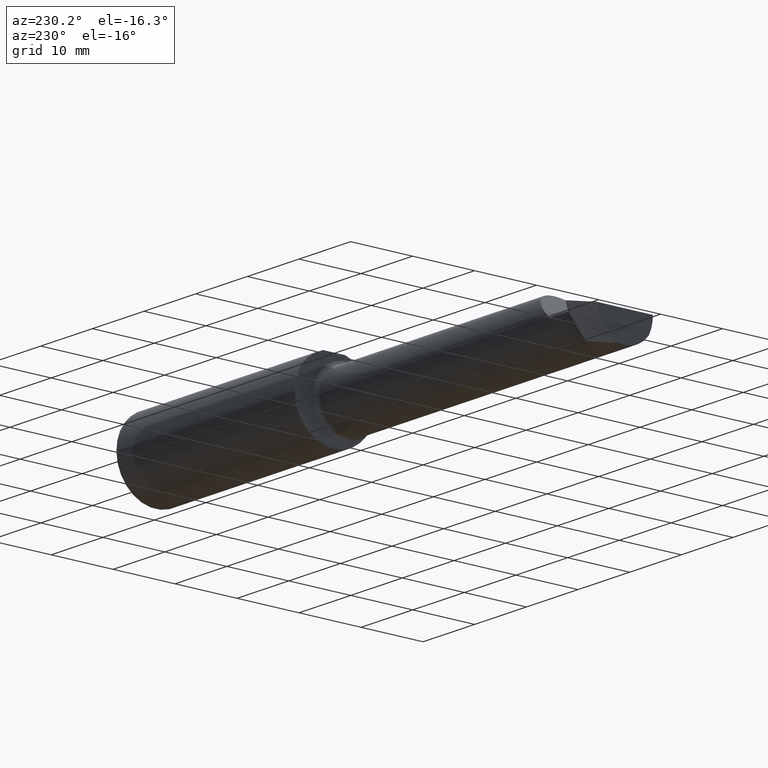
[diagram: clean part render]
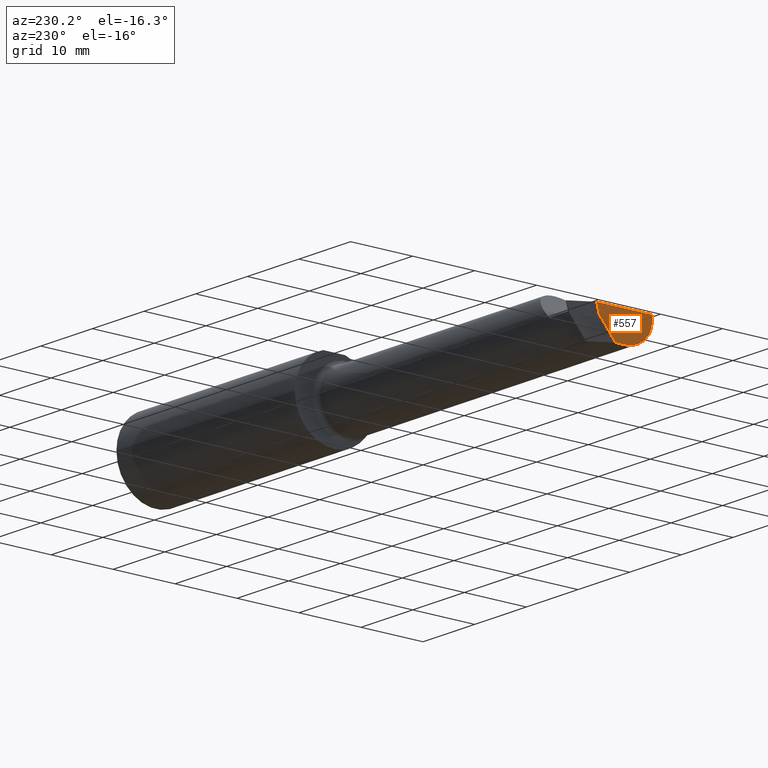
[diagram: same view with one face highlighted and labeled with its STEP entity id]
A machine part, auxiliary view. The second image highlights one B-rep face of the part: STEP entity #557.
In plain terms, the highlighted planar face has unit normal (-1, -0, 0).
Its self-contained STEP definition (entity closure, byte-faithful):
#8 = DIRECTION ( 'NONE',  ( 0.000000000000000000, 1.000000000000000000, 0.000000000000000000 ) ) ;
#21 = CARTESIAN_POINT ( 'NONE',  ( -3.500000000000000000, 0.09158186431805868943, -0.05999999999999753447 ) ) ;
#49 = VECTOR ( 'NONE', #334, 39.37007874015748143 ) ;
#79 = CARTESIAN_POINT ( 'NONE',  ( -3.500000000000000000, -0.2258019038076149176, -0.1069510296203672051 ) ) ;
#94 = EDGE_CURVE ( 'NONE', #822, #840, #180, .T. ) ;
#106 = VERTEX_POINT ( 'NONE', #824 ) ;
#112 = AXIS2_PLACEMENT_3D ( 'NONE', #845, #846, #8 ) ;
#134 = EDGE_CURVE ( 'NONE', #822, #106, #601, .T. ) ;
#141 = EDGE_CURVE ( 'NONE', #722, #840, #621, .T. ) ;
#180 = LINE ( 'NONE', #907, #714 ) ;
#182 = DIRECTION ( 'NONE',  ( 1.224646799147351728E-16, -1.000000000000000000, 0.000000000000000000 ) ) ;
#198 = ORIENTED_EDGE ( 'NONE', *, *, #491, .F. ) ;
#199 = PLANE ( 'NONE',  #792 ) ;
#226 = CIRCLE ( 'NONE', #112, 0.2498499999999999888 ) ;
#241 = CARTESIAN_POINT ( 'NONE',  ( -3.500000000000000000, -6.123233995736759873E-17, 0.000000000000000000 ) ) ;
#267 = VERTEX_POINT ( 'NONE', #79 ) ;
#274 = ORIENTED_EDGE ( 'NONE', *, *, #141, .F. ) ;
#299 = CIRCLE ( 'NONE', #579, 0.1850000000000000533 ) ;
#317 = DIRECTION ( 'NONE',  ( 0.000000000000000000, -0.6427876096865350330, -0.7660444431189815662 ) ) ;
#320 = FACE_OUTER_BOUND ( 'NONE', #691, .T. ) ;
#332 = VECTOR ( 'NONE', #612, 39.37007874015748143 ) ;
#334 = DIRECTION ( 'NONE',  ( -3.118273268708853569E-17, 0.2546263355997762656, 0.9670395179200435010 ) ) ;
#451 = ORIENTED_EDGE ( 'NONE', *, *, #715, .F. ) ;
#460 = VERTEX_POINT ( 'NONE', #811 ) ;
#468 = CARTESIAN_POINT ( 'NONE',  ( -3.500000000000000000, -0.07485000000000029130, -0.1850000000000000533 ) ) ;
#482 = DIRECTION ( 'NONE',  ( 0.000000000000000000, -1.000000000000000000, 0.000000000000000000 ) ) ;
#486 = DIRECTION ( 'NONE',  ( 1.000000000000000000, 1.553500558300393113E-17, -0.000000000000000000 ) ) ;
#491 = EDGE_CURVE ( 'NONE', #106, #460, #589, .T. ) ;
#510 = ORIENTED_EDGE ( 'NONE', *, *, #660, .F. ) ;
#557 = ADVANCED_FACE ( 'NONE', ( #320 ), #199, .T. ) ;
#579 = AXIS2_PLACEMENT_3D ( 'NONE', #700, #486, #482 ) ;
#589 = LINE ( 'NONE', #241, #332 ) ;
#597 = ORIENTED_EDGE ( 'NONE', *, *, #94, .T. ) ;
#601 = LINE ( 'NONE', #899, #49 ) ;
#612 = DIRECTION ( 'NONE',  ( 1.224646799147351728E-16, -1.000000000000000000, 0.000000000000000000 ) ) ;
#620 = CARTESIAN_POINT ( 'NONE',  ( -3.500000000000000000, -0.07485000000000019416, -0.1850000000000000533 ) ) ;
#621 = LINE ( 'NONE', #468, #743 ) ;
#660 = EDGE_CURVE ( 'NONE', #460, #267, #226, .T. ) ;
#689 = DIRECTION ( 'NONE',  ( 0.000000000000000000, 1.000000000000000000, 1.406552993276529236E-16 ) ) ;
#691 = EDGE_LOOP ( 'NONE', ( #761, #597, #274, #451, #510, #198 ) ) ;
#700 = CARTESIAN_POINT ( 'NONE',  ( -3.500000000000000000, -0.07485000000000022191, 0.000000000000000000 ) ) ;
#714 = VECTOR ( 'NONE', #317, 39.37007874015748854 ) ;
#715 = EDGE_CURVE ( 'NONE', #267, #722, #299, .T. ) ;
#718 = CARTESIAN_POINT ( 'NONE',  ( -3.499999999999999112, -0.01330558957910123880, -0.1850000000000002198 ) ) ;
#722 = VERTEX_POINT ( 'NONE', #620 ) ;
#743 = VECTOR ( 'NONE', #689, 39.37007874015748143 ) ;
#761 = ORIENTED_EDGE ( 'NONE', *, *, #134, .F. ) ;
#766 = DIRECTION ( 'NONE',  ( -1.000000000000000000, -1.224646799147351728E-16, 0.000000000000000000 ) ) ;
#792 = AXIS2_PLACEMENT_3D ( 'NONE', #828, #766, #182 ) ;
#811 = CARTESIAN_POINT ( 'NONE',  ( -3.500000000000000000, -0.2498500000000000720, 0.000000000000000000 ) ) ;
#822 = VERTEX_POINT ( 'NONE', #21 ) ;
#824 = CARTESIAN_POINT ( 'NONE',  ( -3.499999999999999112, 0.1073801640285465542, 0.000000000000000000 ) ) ;
#828 = CARTESIAN_POINT ( 'NONE',  ( -3.500000000000000000, -6.123233995736759873E-17, 0.000000000000000000 ) ) ;
#840 = VERTEX_POINT ( 'NONE', #718 ) ;
#845 = CARTESIAN_POINT ( 'NONE',  ( -3.500000000000000000, -6.123233995736759873E-17, 0.000000000000000000 ) ) ;
#846 = DIRECTION ( 'NONE',  ( 1.000000000000000000, 1.224646799147351728E-16, -0.000000000000000000 ) ) ;
#899 = CARTESIAN_POINT ( 'NONE',  ( -3.500000000000000000, 0.1004182171833650078, -0.02644061819092778653 ) ) ;
#907 = CARTESIAN_POINT ( 'NONE',  ( -3.499999999999999112, 0.9532971406997272634, 0.9669522764211785359 ) ) ;